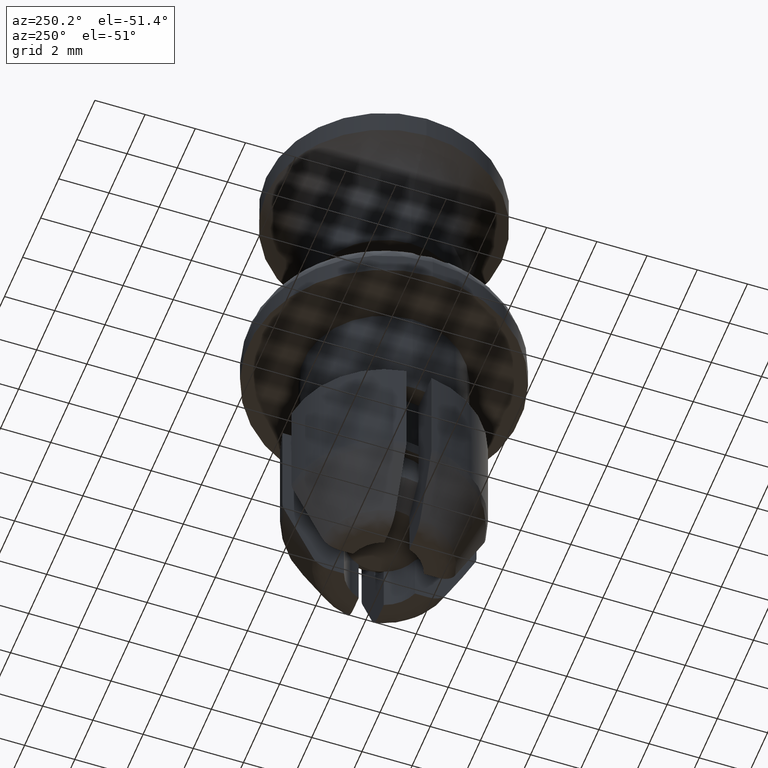
[diagram: clean part render]
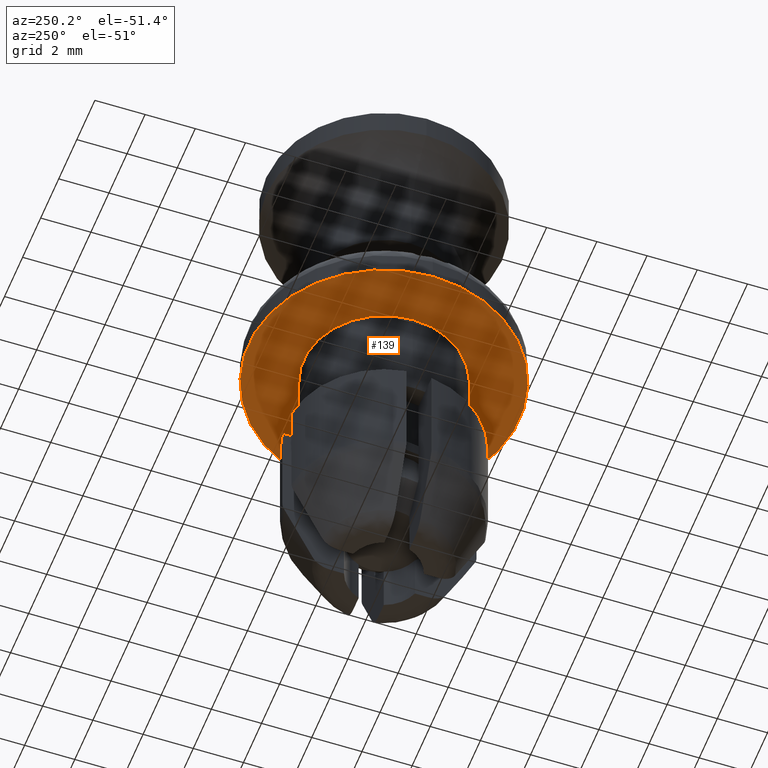
[diagram: same view with one face highlighted and labeled with its STEP entity id]
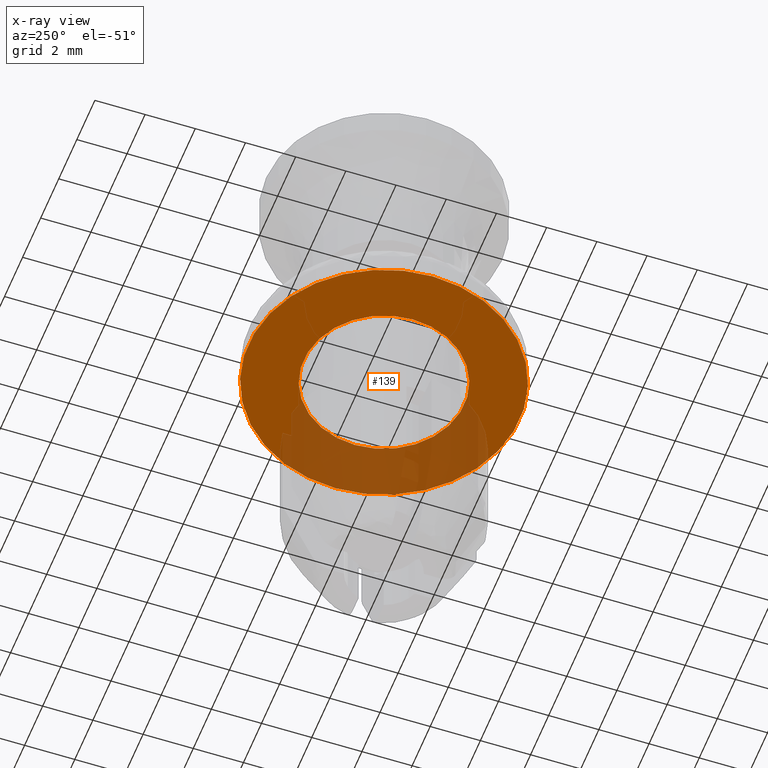
[diagram: x-ray of the same camera — body ghosted, the highlighted face saturated]
A machine part, auxiliary view. The second image highlights one B-rep face of the part: STEP entity #139.
The next image is the same camera in x-ray: the body ghosted, the highlighted face saturated — about 32% of this face is hidden behind the body in this view.
In plain terms, the highlighted planar face has unit normal (0, 0, 1).
Its self-contained STEP definition (entity closure, byte-faithful):
#139=ADVANCED_FACE('',(#464,#465),#463,.F.);
#463=PLANE('',#1202);
#464=FACE_OUTER_BOUND('',#1203,.T.);
#465=FACE_BOUND('',#1204,.T.);
#1199=CARTESIAN_POINT('',(-7.02000000000E+00,-1.12236892330E+01,-2.00000000000E+00));
#1200=DIRECTION('',(0.00000000000E+00,0.00000000000E+00,1.00000000000E+00));
#1201=DIRECTION('',(1.00000000000E+00,0.00000000000E+00,0.00000000000E+00));
#1202=AXIS2_PLACEMENT_3D('',#1199,#1200,#1201);
#1203=EDGE_LOOP('',(#1770,#1771));
#1204=EDGE_LOOP('',(#1772,#1773));
#1770=ORIENTED_EDGE('',*,*,#2117,.T.);
#1771=ORIENTED_EDGE('',*,*,#2118,.T.);
#1772=ORIENTED_EDGE('',*,*,#2119,.T.);
#1773=ORIENTED_EDGE('',*,*,#2120,.T.);
#2117=EDGE_CURVE('',#2952,#2953,#2954,.T.);
#2118=EDGE_CURVE('',#2953,#2952,#2960,.T.);
#2119=EDGE_CURVE('',#2966,#2967,#2968,.T.);
#2120=EDGE_CURVE('',#2967,#2966,#2974,.T.);
#2952=VERTEX_POINT('',#4015);
#2953=VERTEX_POINT('',#4016);
#2954=CIRCLE('',#4020,5.40000000000E+00);
#2960=CIRCLE('',#4024,5.40000000000E+00);
#2966=VERTEX_POINT('',#4025);
#2967=VERTEX_POINT('',#4026);
#2968=CIRCLE('',#4030,3.20000000000E+00);
#2974=CIRCLE('',#4034,3.20000000000E+00);
#4015=CARTESIAN_POINT('',(-5.40000000000E+00,0.00000000000E+00,-2.00000000000E+00));
#4016=CARTESIAN_POINT('',(5.40000000000E+00,2.96059473233E-16,-2.00000000000E+00));
#4017=CARTESIAN_POINT('',(0.00000000000E+00,0.00000000000E+00,-2.00000000000E+00));
#4018=DIRECTION('',(-0.00000000000E+00,0.00000000000E+00,-1.00000000000E+00));
#4019=DIRECTION('',(-1.00000000000E+00,-1.22460635382E-16,0.00000000000E+00));
#4020=AXIS2_PLACEMENT_3D('',#4017,#4018,#4019);
#4021=CARTESIAN_POINT('',(0.00000000000E+00,0.00000000000E+00,-2.00000000000E+00));
#4022=DIRECTION('',(-0.00000000000E+00,0.00000000000E+00,-1.00000000000E+00));
#4023=DIRECTION('',(-1.00000000000E+00,-1.22460635382E-16,0.00000000000E+00));
#4024=AXIS2_PLACEMENT_3D('',#4021,#4022,#4023);
#4025=CARTESIAN_POINT('',(-3.20000000000E+00,0.00000000000E+00,-2.00000000000E+00));
#4026=CARTESIAN_POINT('',(3.20000000000E+00,4.44089209850E-16,-2.00000000000E+00));
#4027=CARTESIAN_POINT('',(0.00000000000E+00,0.00000000000E+00,-2.00000000000E+00));
#4028=DIRECTION('',(0.00000000000E+00,0.00000000000E+00,1.00000000000E+00));
#4029=DIRECTION('',(-1.00000000000E+00,-1.22460635382E-16,0.00000000000E+00));
#4030=AXIS2_PLACEMENT_3D('',#4027,#4028,#4029);
#4031=CARTESIAN_POINT('',(0.00000000000E+00,0.00000000000E+00,-2.00000000000E+00));
#4032=DIRECTION('',(0.00000000000E+00,0.00000000000E+00,1.00000000000E+00));
#4033=DIRECTION('',(-1.00000000000E+00,-1.22460635382E-16,0.00000000000E+00));
#4034=AXIS2_PLACEMENT_3D('',#4031,#4032,#4033);